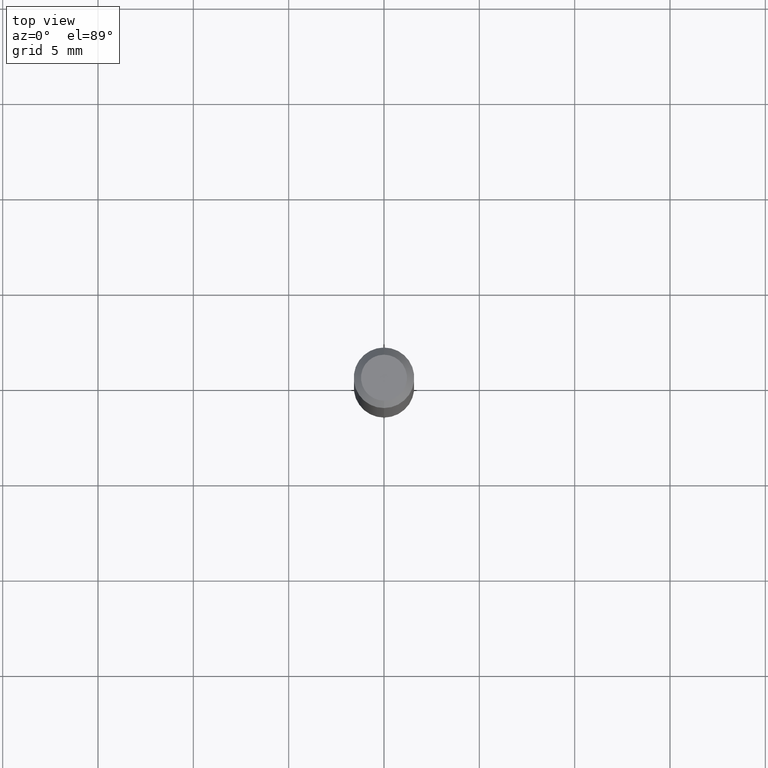
[diagram: clean part render]
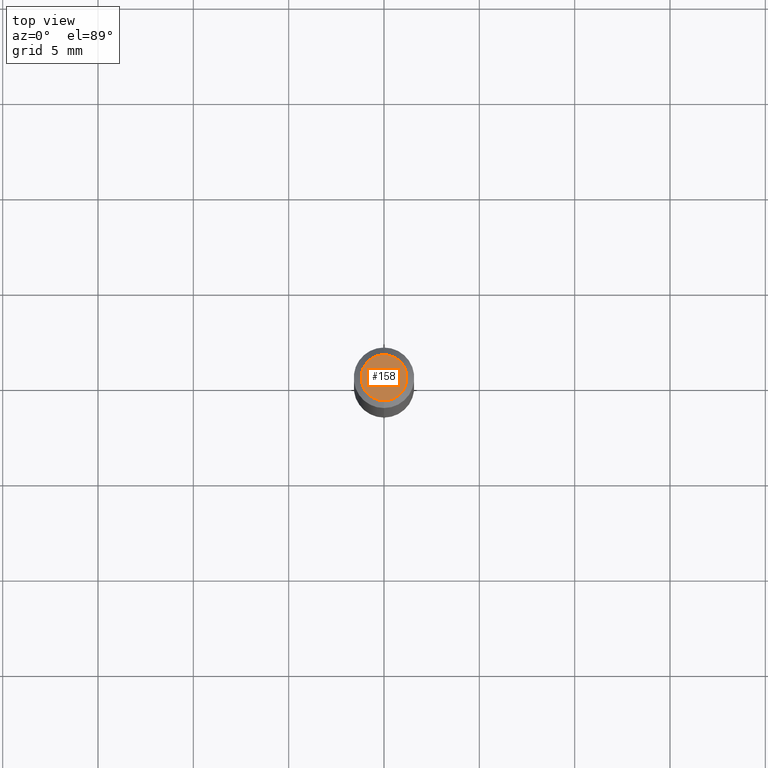
[diagram: same view with one face highlighted and labeled with its STEP entity id]
A machine part, top view. The second image highlights one B-rep face of the part: STEP entity #158.
In plain terms, the highlighted planar face has unit normal (0, -0, -1).
Its self-contained STEP definition (entity closure, byte-faithful):
#4 = FACE_OUTER_BOUND ( 'NONE', #186, .T. ) ;
#17 = ORIENTED_EDGE ( 'NONE', *, *, #41, .T. ) ;
#38 = CARTESIAN_POINT ( 'NONE',  ( 1.601634918364404677E-45, -2.286833691347816108E-31, -6.549574875288539984E-17 ) ) ;
#41 = EDGE_CURVE ( 'NONE', #42, #382, #210, .T. ) ;
#42 = VERTEX_POINT ( 'NONE', #448 ) ;
#158 = ADVANCED_FACE ( 'NONE', ( #4 ), #198, .F. ) ;
#164 = DIRECTION ( 'NONE',  ( 6.982962677686265922E-15, 1.000000000000000000, -3.491575766201267725E-15 ) ) ;
#186 = EDGE_LOOP ( 'NONE', ( #17, #236 ) ) ;
#198 = PLANE ( 'NONE',  #417 ) ;
#202 = DIRECTION ( 'NONE',  ( -6.982962677686266711E-15, -1.000000000000000000, 3.491575766201268120E-15 ) ) ;
#210 = CIRCLE ( 'NONE', #222, 0.04749999999999999362 ) ;
#222 = AXIS2_PLACEMENT_3D ( 'NONE', #481, #489, #246 ) ;
#236 = ORIENTED_EDGE ( 'NONE', *, *, #495, .T. ) ;
#246 = DIRECTION ( 'NONE',  ( -6.982962677686266711E-15, -1.000000000000000000, 3.491575766201268120E-15 ) ) ;
#291 = CARTESIAN_POINT ( 'NONE',  ( 3.316907271900976096E-16, 0.04749999999999999362, -1.985977232710029220E-16 ) ) ;
#298 = CARTESIAN_POINT ( 'NONE',  ( -3.773273898774340269E-16, -0.04749999999999999362, 1.003541001416748038E-16 ) ) ;
#382 = VERTEX_POINT ( 'NONE', #298 ) ;
#417 = AXIS2_PLACEMENT_3D ( 'NONE', #291, #439, #164 ) ;
#435 = AXIS2_PLACEMENT_3D ( 'NONE', #38, #492, #202 ) ;
#439 = DIRECTION ( 'NONE',  ( 2.445402867913384219E-29, -3.491575766201267725E-15, -1.000000000000000000 ) ) ;
#448 = CARTESIAN_POINT ( 'NONE',  ( 3.840629472727447874E-16, 0.04749999999999999362, -2.313455976474456528E-16 ) ) ;
#481 = CARTESIAN_POINT ( 'NONE',  ( 1.601634918364404677E-45, -2.286833691347816108E-31, -6.549574875288539984E-17 ) ) ;
#489 = DIRECTION ( 'NONE',  ( -2.445402867913384779E-29, 3.491575766201267725E-15, 1.000000000000000000 ) ) ;
#492 = DIRECTION ( 'NONE',  ( -2.445402867913384779E-29, 3.491575766201267725E-15, 1.000000000000000000 ) ) ;
#495 = EDGE_CURVE ( 'NONE', #382, #42, #496, .T. ) ;
#496 = CIRCLE ( 'NONE', #435, 0.04749999999999999362 ) ;